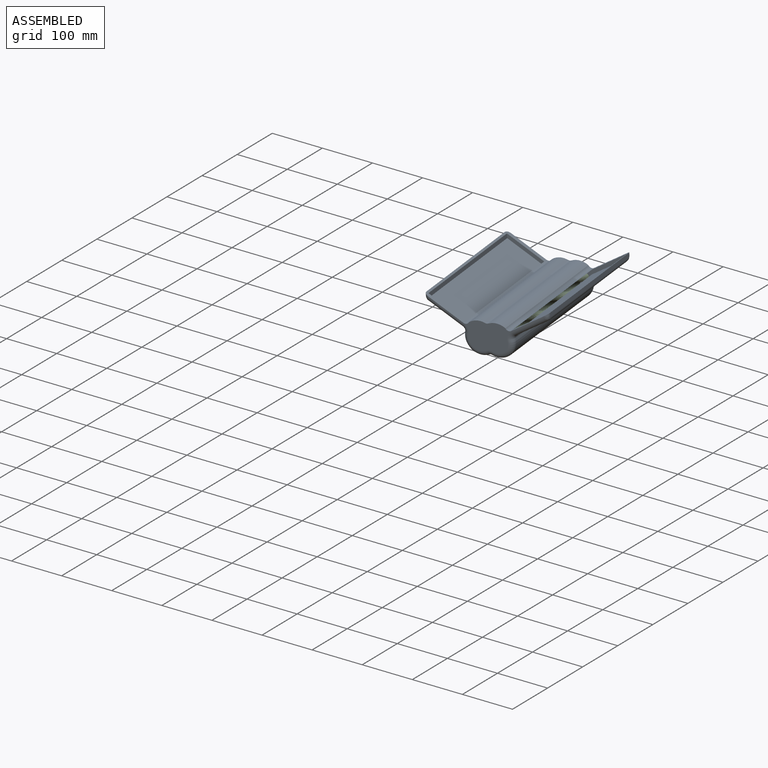
[diagram: assembled view]
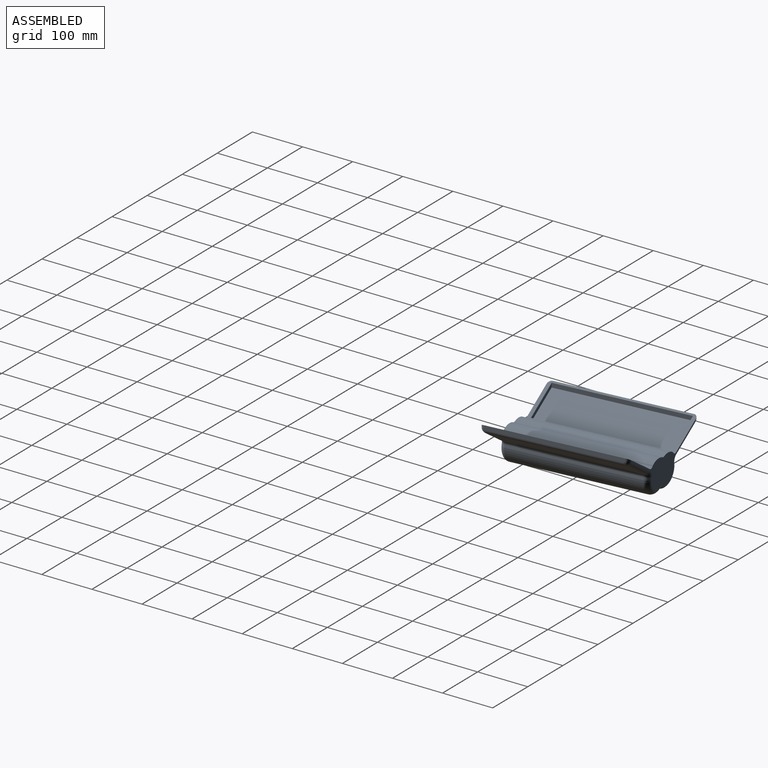
[diagram: assembled view, second angle]
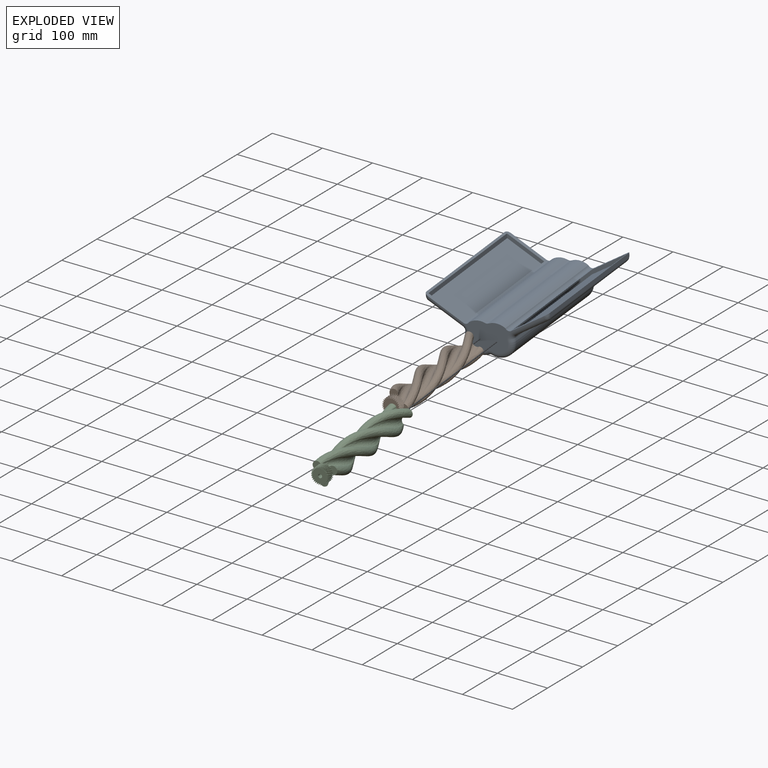
[diagram: exploded view]
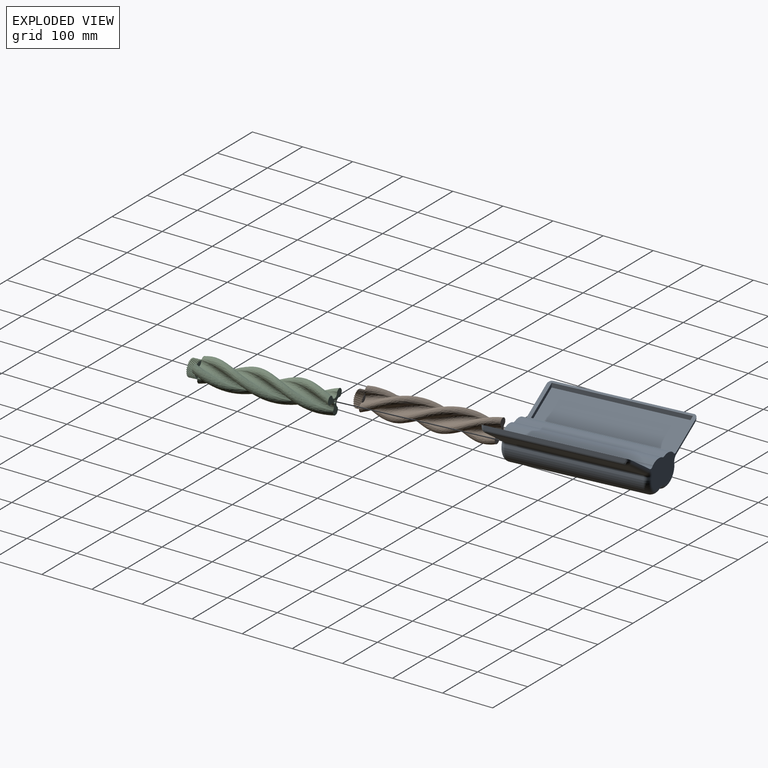
[diagram: exploded view, second angle]
ASSEMBLY  parts=3 mates=2
PART A: 62 faces, bbox 232x279.4x99.2 mm
  f0: plane 224.38x90.53mm, normal (0,-1,0), area 5153.3mm2, adj f2,f12,f20,f21,f22,f23,f24,f25
  f1: cylinder r=7.62mm len=279.4mm, axis (0,1,0), area 3344.3mm2, adj f2,f18,f19,f22,f37
  f2: plane 279.4x71.3mm, normal (-0.5,0,0.87), area 2388.1mm2, adj f0,f1,f3,f19,f20,f36,f37,f57
  f3: plane 264.16x8.3mm, normal (1,0,0), area 2189.5mm2, adj f2,f57,f58,f59,f60,f61
  f4: plane 259.08x62.65mm, normal (0.5,0,-0.87), area 18741.9mm2, adj f5,f44,f51,f59
  f5: cylinder r=6.35mm len=259.08mm, axis (0,1,0), area 2070.5mm2, adj f4,f6,f43,f50
  f6: cylinder r=31.75mm len=259.08mm, axis (0,1,0), area 18040.5mm2, adj f5,f7,f42,f49
  f7: cylinder r=6.35mm len=259.08mm, axis (0,1,0), area 1380mm2, adj f6,f8,f41,f48
  f8: cylinder r=31.75mm len=259.08mm, axis (0,1,0), area 18241.2mm2, adj f7,f9,f40,f47
  f9: cylinder r=6.35mm len=259.08mm, axis (0,1,0), area 2083mm2, adj f8,f10,f39,f46
  f10: plane 259.08x62.61mm, normal (-0.5,0,-0.87), area 18731mm2, adj f9,f38,f45,f54
  f11: plane 264.16x8.3mm, normal (-1,0,0), area 2189.5mm2, adj f12,f52,f53,f54,f55,f56
  f12: plane 279.4x71.3mm, normal (0.5,0,0.87), area 2388.1mm2, adj f0,f11,f13,f19,f21,f36,f37,f52
  f13: cylinder r=7.62mm len=279.4mm, axis (0,1,0), area 3344.3mm2, adj f12,f14,f19,f23,f37
  f14: plane 279.4x0.16mm, normal (-0.87,0,0.5), area 51.1mm2, adj f13,f15,f19,f37
  f15: cylinder r=32.77mm len=279.4mm, axis (0,1,0), area 8939.9mm2, adj f14,f16,f19,f37
  f16: cylinder r=7.62mm len=279.4mm, axis (0,1,0), area 1679.5mm2, adj f15,f17,f19,f37
  f17: cylinder r=32.77mm len=279.4mm, axis (0,1,0), area 9331.5mm2, adj f16,f18,f19,f37
  f18: plane 279.4x0.46mm, normal (0.87,0,0.5), area 147.3mm2, adj f1,f17,f19,f37
  f19: plane 216.76x82.01mm, normal (0,1,0), area 3772.2mm2, adj f1,f2,f12,f13,f14,f15,f16,f17
  f20: plane 264.16x8.3mm, normal (-1,0,0), area 2192.7mm2, adj f0,f2,f25,f36
  f21: plane 264.16x8.3mm, normal (1,0,0), area 2192.7mm2, adj f0,f12,f26,f36
  f22: plane 264.16x5.08mm, normal (0.5,0,-0.87), area 1548.7mm2, adj f0,f1,f30,f36
  f23: plane 264.16x5.08mm, normal (-0.5,0,-0.87), area 1548.7mm2, adj f0,f13,f33,f36
  f24: cylinder r=6.35mm len=264.16mm, axis (0,1,0), area 2278.8mm2, adj f0,f25,f29,f36
  f25: plane 264.16x67.46mm, normal (-0.5,0,0.87), area 20577.2mm2, adj f0,f20,f24,f36
  f26: plane 264.16x67.46mm, normal (0.5,0,0.87), area 20577.2mm2, adj f0,f21,f27,f36
  f27: cylinder r=6.35mm len=264.16mm, axis (0,1,0), area 2278.8mm2, adj f0,f26,f28,f36
  f28: cylinder r=27.43mm len=264.16mm, axis (0,1,0), area 18069.8mm2, adj f0,f27,f29,f36
  f29: cylinder r=27.43mm len=264.16mm, axis (0,1,0), area 18069.8mm2, adj f0,f24,f28,f36
  f30: cylinder r=6.35mm len=264.16mm, axis (0,1,0), area 1984.5mm2, adj f0,f22,f31,f36
  f31: cylinder r=27.43mm len=264.16mm, axis (0,1,0), area 9210mm2, adj f0,f30,f32,f36
  f32: cylinder r=27.43mm len=264.16mm, axis (0,1,0), area 9210mm2, adj f0,f31,f33,f36
  f33: cylinder r=6.35mm len=264.16mm, axis (0,1,0), area 1984.5mm2, adj f0,f23,f32,f36
  f34: cylinder r=3.81mm len=264.16mm, axis (0,1,0), area 6323.7mm2, adj f0,f36
  f35: cylinder r=3.81mm len=264.16mm, axis (0,1,0), area 6323.7mm2, adj f0,f36
  f36: plane 224.38x90.53mm, normal (0,1,0), area 5153.3mm2, adj f2,f12,f20,f21,f22,f23,f24,f25
  f37: plane 216.76x82.01mm, normal (0,-1,0), area 3772.2mm2, adj f1,f2,f12,f13,f14,f15,f16,f17
  f38: cylinder r=10.16mm len=68.96mm, axis (0.87,0,-0.5), area 1162.3mm2, adj f10,f37,f39,f55
  f39: torus R=16.51mm, axis (0,1,0), area 202.9mm2, adj f9,f37,f38,f40
  f40: torus R=21.59mm, axis (0,1,0), area 993mm2, adj f8,f37,f39,f41
  f41: torus R=16.51mm, axis (0,1,0), area 134.4mm2, adj f7,f37,f40,f42
  f42: torus R=21.59mm, axis (0,1,0), area 982.1mm2, adj f6,f37,f41,f43
  f43: torus R=16.51mm, axis (0,1,0), area 201.7mm2, adj f5,f37,f42,f44
  f44: cylinder r=10.16mm len=69mm, axis (0.87,0,0.5), area 1163mm2, adj f4,f37,f43,f60
  f45: cylinder r=10.16mm len=68.96mm, axis (-0.87,0,0.5), area 1162.3mm2, adj f10,f19,f46,f53
  f46: torus R=16.51mm, axis (0,1,0), area 202.9mm2, adj f9,f19,f45,f47
  f47: torus R=21.59mm, axis (0,1,0), area 993mm2, adj f8,f19,f46,f48
  f48: torus R=16.51mm, axis (0,1,0), area 134.4mm2, adj f7,f19,f47,f49
  f49: torus R=21.59mm, axis (0,1,0), area 982.1mm2, adj f6,f19,f48,f50
  f50: torus R=16.51mm, axis (0,1,0), area 201.7mm2, adj f5,f19,f49,f51
  f51: cylinder r=10.16mm len=69mm, axis (-0.87,0,-0.5), area 1163mm2, adj f4,f19,f50,f58
  f52: cylinder r=7.62mm len=7.62mm, axis (0,0,1), area 45.1mm2, adj f11,f12,f19,f53
  f53: bspline ~10.16x9.53mm, area 101.8mm2, adj f11,f45,f52,f54
  f54: cylinder r=7.62mm len=259.08mm, axis (0,1,0), area 2067.4mm2, adj f10,f11,f53,f55
  f55: bspline ~10.16x9.53mm, area 101.8mm2, adj f11,f38,f54,f56
  f56: cylinder r=7.62mm len=7.62mm, axis (0,0,-1), area 45.1mm2, adj f11,f12,f37,f55
  f57: cylinder r=7.62mm len=7.62mm, axis (0,0,-1), area 45.1mm2, adj f2,f3,f19,f58
  f58: bspline ~10.16x9.53mm, area 101.8mm2, adj f3,f51,f57,f59
  f59: cylinder r=7.62mm len=259.08mm, axis (0,1,0), area 2067.4mm2, adj f3,f4,f58,f60
  f60: bspline ~10.16x9.53mm, area 101.8mm2, adj f3,f44,f59,f61
  f61: cylinder r=7.62mm len=7.62mm, axis (0,0,1), area 45.1mm2, adj f2,f3,f37,f60
PART B: 135 faces, bbox 53.7x53.7x273.7 mm
  f0: cylinder r=14.35mm len=15.24mm, axis (0,0,-1), area 22.9mm2, adj f27,f40,f44,f45,f134
  f1: cylinder r=14.35mm len=15.24mm, axis (0,0,-1), area 22.9mm2, adj f40,f44,f131,f132
  f2: cylinder r=14.35mm len=15.24mm, axis (0,0,-1), area 22.9mm2, adj f40,f44,f128,f129
  f3: cylinder r=14.35mm len=15.24mm, axis (0,0,-1), area 22.9mm2, adj f40,f44,f125,f126
  f4: cylinder r=14.35mm len=15.24mm, axis (0,0,-1), area 22.9mm2, adj f40,f44,f120,f123
  f5: cylinder r=14.35mm len=15.24mm, axis (0,0,-1), area 22.9mm2, adj f40,f44,f117,f121
  f6: plane 17.2x13.21mm, normal (0,0,1), area 148.4mm2, adj f7,f8,f9,f10,f11,f33,f38,f105
  f7: cylinder r=14.35mm len=15.24mm, axis (0,0,-1), area 22.9mm2, adj f6,f44,f116,f118
  f8: cylinder r=14.35mm len=15.24mm, axis (0,0,-1), area 22.9mm2, adj f6,f44,f113,f114
  f9: cylinder r=14.35mm len=15.24mm, axis (0,0,-1), area 22.9mm2, adj f6,f44,f110,f111
  f10: cylinder r=14.35mm len=15.24mm, axis (0,0,-1), area 22.9mm2, adj f6,f44,f107,f108
  f11: cylinder r=14.35mm len=15.24mm, axis (0,0,-1), area 22.9mm2, adj f6,f42,f44,f104,f105
  f12: cylinder r=14.35mm len=15.24mm, axis (0,0,-1), area 22.9mm2, adj f42,f44,f101,f102
  f13: cylinder r=14.35mm len=15.24mm, axis (0,0,-1), area 22.9mm2, adj f42,f44,f98,f99
  f14: cylinder r=14.35mm len=15.24mm, axis (0,0,-1), area 22.9mm2, adj f42,f44,f95,f96
  f15: cylinder r=14.35mm len=15.24mm, axis (0,0,-1), area 22.9mm2, adj f42,f44,f92,f93
  f16: cylinder r=14.35mm len=15.24mm, axis (0,0,-1), area 22.9mm2, adj f42,f44,f87,f90
  f17: plane 17.01x15.8mm, normal (0,0,1), area 148.4mm2, adj f18,f19,f20,f21,f22,f34,f35,f75
  f18: cylinder r=14.35mm len=15.24mm, axis (0,0,-1), area 22.9mm2, adj f17,f44,f86,f88
  f19: cylinder r=14.35mm len=15.24mm, axis (0,0,-1), area 22.9mm2, adj f17,f44,f83,f84
  f20: cylinder r=14.35mm len=15.24mm, axis (0,0,-1), area 22.9mm2, adj f17,f44,f80,f81
  f21: cylinder r=14.35mm len=15.24mm, axis (0,0,-1), area 22.9mm2, adj f17,f44,f77,f78
  f22: cylinder r=14.35mm len=15.24mm, axis (0,0,-1), area 22.9mm2, adj f17,f41,f44,f74,f75
  f23: cylinder r=14.35mm len=15.24mm, axis (0,0,-1), area 22.9mm2, adj f41,f44,f71,f72
  f24: cylinder r=14.35mm len=15.24mm, axis (0,0,-1), area 22.9mm2, adj f41,f44,f68,f69
  f25: cylinder r=14.35mm len=15.24mm, axis (0,0,-1), area 22.9mm2, adj f41,f44,f65,f66
  f26: cylinder r=14.35mm len=15.24mm, axis (0,0,-1), area 22.9mm2, adj f41,f44,f62,f63
  f27: plane 17.14x15.56mm, normal (0,0,1), area 148.4mm2, adj f0,f29,f30,f31,f36,f37,f43,f45
  f28: cylinder r=14.35mm len=15.24mm, axis (0,0,-1), area 22.9mm2, adj f41,f44,f57,f60
  f29: cylinder r=14.35mm len=15.24mm, axis (0,0,-1), area 22.9mm2, adj f27,f44,f56,f58
  f30: cylinder r=14.35mm len=15.24mm, axis (0,0,-1), area 22.9mm2, adj f27,f44,f53,f54
  f31: cylinder r=14.35mm len=15.24mm, axis (0,0,-1), area 22.9mm2, adj f27,f44,f50,f51
  f32: plane 46.73x42.75mm, normal (0,0,-1), area 783.9mm2, adj f33,f34,f35,f36,f37,f38,f39
  f33: bspline ~254x31.99mm, area 6541.5mm2, adj f6,f32,f34,f38,f42
  f34: bspline ~254x53mm, area 8707.3mm2, adj f17,f32,f33,f35,f42
  f35: bspline ~254x31.99mm, area 6541.5mm2, adj f17,f32,f34,f36,f41
  f36: bspline ~254x53mm, area 8707.3mm2, adj f27,f32,f35,f37,f41
  f37: bspline ~254x31.99mm, area 6541.5mm2, adj f27,f32,f36,f38,f40
  f38: bspline ~254x52.98mm, area 8707.3mm2, adj f6,f32,f33,f37,f40
  f39: cylinder r=3.81mm len=269.24mm, axis (0,0,-1), area 6445.3mm2, adj f32,f44
  f40: plane 15.93x12.8mm, normal (0,0,-1), area 115.4mm2, adj f0,f1,f2,f3,f4,f5,f37,f38
  f41: plane 16.98x10.92mm, normal (0,0,-1), area 115.4mm2, adj f22,f23,f24,f25,f26,f28,f35,f36
  f42: plane 15.63x12.8mm, normal (0,0,-1), area 115.4mm2, adj f11,f12,f13,f14,f15,f16,f33,f34
  f43: cylinder r=14.35mm len=15.24mm, axis (0,0,-1), area 22.9mm2, adj f27,f44,f47,f48
  f44: plane 33.27x33.21mm, normal (0,0,1), area 684.8mm2, adj f0,f1,f2,f3,f4,f5,f7,f8
  f45: bspline ~19.05x10.14mm, area 39.5mm2, adj f0,f27,f44,f46
  f46: bspline ~19.05x11.06mm, area 14.3mm2, adj f27,f44,f45,f47
  f47: bspline ~19.05x10.22mm, area 39.5mm2, adj f27,f43,f44,f46
  f48: bspline ~19.05x10.27mm, area 39.5mm2, adj f27,f43,f44,f49
  f49: bspline ~19.05x11.14mm, area 14.3mm2, adj f27,f44,f48,f50
  f50: bspline ~19.05x10.23mm, area 39.5mm2, adj f27,f31,f44,f49
  f51: bspline ~19.05x10.16mm, area 39.5mm2, adj f27,f31,f44,f52
  f52: bspline ~19.05x10.74mm, area 14.3mm2, adj f27,f44,f51,f53
  f53: bspline ~15.24x7.71mm, area 39.5mm2, adj f27,f30,f44,f52
  f54: bspline ~15.24x8.12mm, area 39.5mm2, adj f27,f30,f44,f55
  f55: bspline ~19.05x9.86mm, area 14.3mm2, adj f27,f44,f54,f56
  f56: bspline ~15.24x7.33mm, area 39.5mm2, adj f27,f29,f44,f55
  f57: bspline ~15.24x7.33mm, area 39.5mm2, adj f28,f41,f44,f59
  f58: bspline ~19.05x9.18mm, area 39.5mm2, adj f27,f29,f44,f59
  f59: bspline ~19.05x8.56mm, area 14.3mm2, adj f27,f41,f44,f57,f58
  f60: bspline ~19.05x8.44mm, area 39.5mm2, adj f28,f41,f44,f61
  f61: bspline ~19.05x8.8mm, area 14.3mm2, adj f41,f44,f60,f62
  f62: bspline ~19.05x9.33mm, area 39.5mm2, adj f26,f41,f44,f61
  f63: bspline ~19.05x9.15mm, area 39.5mm2, adj f26,f41,f44,f64
  f64: bspline ~19.05x10.04mm, area 14.3mm2, adj f41,f44,f63,f65
  f65: bspline ~19.05x9.96mm, area 39.5mm2, adj f25,f41,f44,f64
  f66: bspline ~19.05x9.9mm, area 39.5mm2, adj f25,f41,f44,f67
  f67: bspline ~19.05x10.84mm, area 14.3mm2, adj f41,f44,f66,f68
  f68: bspline ~19.05x10.16mm, area 39.5mm2, adj f24,f41,f44,f67
  f69: bspline ~19.05x10.26mm, area 39.5mm2, adj f24,f41,f44,f70
  f70: bspline ~19.05x11.16mm, area 14.3mm2, adj f41,f44,f69,f71
  f71: bspline ~19.05x10.28mm, area 39.5mm2, adj f23,f41,f44,f70
  f72: bspline ~19.05x10.17mm, area 39.5mm2, adj f23,f41,f44,f73
  f73: bspline ~19.05x11mm, area 14.3mm2, adj f41,f44,f72,f74
  f74: bspline ~19.05x10.07mm, area 39.5mm2, adj f22,f41,f44,f73
  f75: bspline ~15.24x8.28mm, area 39.5mm2, adj f17,f22,f44,f76
  f76: bspline ~19.05x10.36mm, area 14.3mm2, adj f17,f44,f75,f77
  f77: bspline ~19.05x9.42mm, area 39.5mm2, adj f17,f21,f44,f76
  f78: bspline ~15.24x7.86mm, area 39.5mm2, adj f17,f21,f44,f79
  f79: bspline ~19.05x9.26mm, area 14.3mm2, adj f17,f44,f78,f80
  f80: bspline ~19.05x8.72mm, area 39.5mm2, adj f17,f20,f44,f79
  f81: bspline ~19.05x8.68mm, area 39.5mm2, adj f17,f20,f44,f82
  f82: bspline ~19.05x8.04mm, area 14.3mm2, adj f17,f44,f81,f83
  f83: bspline ~19.05x8.86mm, area 39.5mm2, adj f17,f19,f44,f82
  f84: bspline ~19.05x8.85mm, area 39.5mm2, adj f17,f19,f44,f85
  f85: bspline ~19.05x9.47mm, area 14.3mm2, adj f17,f44,f84,f86
  f86: bspline ~19.05x9.7mm, area 39.5mm2, adj f17,f18,f44,f85
  f87: bspline ~19.05x10.12mm, area 39.5mm2, adj f16,f42,f44,f89
  f88: bspline ~15.24x7.87mm, area 39.5mm2, adj f17,f18,f44,f89
  f89: bspline ~19.05x10.5mm, area 14.3mm2, adj f17,f42,f44,f87,f88
  f90: bspline ~19.05x10.14mm, area 39.5mm2, adj f16,f42,f44,f91
  f91: bspline ~19.05x11.06mm, area 14.3mm2, adj f42,f44,f90,f92
  f92: bspline ~19.05x10.22mm, area 39.5mm2, adj f15,f42,f44,f91
  f93: bspline ~19.05x10.27mm, area 39.5mm2, adj f15,f42,f44,f94
  f94: bspline ~19.05x11.14mm, area 14.3mm2, adj f42,f44,f93,f95
  f95: bspline ~19.05x10.23mm, area 39.5mm2, adj f14,f42,f44,f94
  f96: bspline ~19.05x10.16mm, area 39.5mm2, adj f14,f42,f44,f97
  f97: bspline ~19.05x10.74mm, area 14.3mm2, adj f42,f44,f96,f98
  f98: bspline ~15.24x7.71mm, area 39.5mm2, adj f13,f42,f44,f97
  f99: bspline ~15.24x8.12mm, area 39.5mm2, adj f13,f42,f44,f100
  f100: bspline ~19.05x9.86mm, area 14.3mm2, adj f42,f44,f99,f101
  f101: bspline ~15.24x7.33mm, area 39.5mm2, adj f12,f42,f44,f100
  f102: bspline ~19.05x9.18mm, area 39.5mm2, adj f12,f42,f44,f103
  f103: bspline ~19.05x8.56mm, area 14.3mm2, adj f42,f44,f102,f104
  f104: bspline ~15.24x7.33mm, area 39.5mm2, adj f11,f42,f44,f103
  f105: bspline ~19.05x8.44mm, area 39.5mm2, adj f6,f11,f44,f106
  f106: bspline ~19.05x8.8mm, area 14.3mm2, adj f6,f44,f105,f107
  f107: bspline ~19.05x9.33mm, area 39.5mm2, adj f6,f10,f44,f106
  f108: bspline ~19.05x9.15mm, area 39.5mm2, adj f6,f10,f44,f109
  f109: bspline ~19.05x10.04mm, area 14.3mm2, adj f6,f44,f108,f110
  f110: bspline ~19.05x9.96mm, area 39.5mm2, adj f6,f9,f44,f109
  f111: bspline ~19.05x9.9mm, area 39.5mm2, adj f6,f9,f44,f112
  f112: bspline ~19.05x10.84mm, area 14.3mm2, adj f6,f44,f111,f113
  f113: bspline ~19.05x10.16mm, area 39.5mm2, adj f6,f8,f44,f112
  f114: bspline ~19.05x10.26mm, area 39.5mm2, adj f6,f8,f44,f115
  f115: bspline ~19.05x11.16mm, area 14.3mm2, adj f6,f44,f114,f116
  f116: bspline ~19.05x10.28mm, area 39.5mm2, adj f6,f7,f44,f115
  f117: bspline ~19.05x10.07mm, area 39.5mm2, adj f5,f40,f44,f119
  f118: bspline ~19.05x10.17mm, area 39.5mm2, adj f6,f7,f44,f119
  f119: bspline ~19.05x11mm, area 14.3mm2, adj f6,f40,f44,f117,f118
  f120: bspline ~19.05x9.42mm, area 39.5mm2, adj f4,f40,f44,f122
  f121: bspline ~15.24x8.28mm, area 39.5mm2, adj f5,f40,f44,f122
  f122: bspline ~19.05x10.36mm, area 14.3mm2, adj f40,f44,f120,f121
  f123: bspline ~15.24x7.86mm, area 39.5mm2, adj f4,f40,f44,f124
  f124: bspline ~19.05x9.26mm, area 14.3mm2, adj f40,f44,f123,f125
  f125: bspline ~19.05x8.72mm, area 39.5mm2, adj f3,f40,f44,f124
  f126: bspline ~19.05x8.68mm, area 39.5mm2, adj f3,f40,f44,f127
  f127: bspline ~19.05x8.04mm, area 14.3mm2, adj f40,f44,f126,f128
  f128: bspline ~19.05x8.86mm, area 39.5mm2, adj f2,f40,f44,f127
  f129: bspline ~19.05x8.85mm, area 39.5mm2, adj f2,f40,f44,f130
  f130: bspline ~19.05x9.47mm, area 14.3mm2, adj f40,f44,f129,f131
  f131: bspline ~19.05x9.7mm, area 39.5mm2, adj f1,f40,f44,f130
  f132: bspline ~15.24x7.87mm, area 39.5mm2, adj f1,f40,f44,f133
  f133: bspline ~19.05x10.5mm, area 14.3mm2, adj f40,f44,f132,f134
  f134: bspline ~19.05x10.12mm, area 39.5mm2, adj f0,f40,f44,f133
PART C: 135 faces, bbox 53.7x53.7x273.7 mm
  f0: cylinder r=14.35mm len=15.24mm, axis (0,0,-1), area 22.9mm2, adj f19,f43,f44,f84,f134
  f1: cylinder r=14.35mm len=15.24mm, axis (0,0,-1), area 22.9mm2, adj f43,f44,f131,f132
  f2: cylinder r=14.35mm len=15.24mm, axis (0,0,-1), area 22.9mm2, adj f43,f44,f128,f129
  f3: cylinder r=14.35mm len=15.24mm, axis (0,0,-1), area 22.9mm2, adj f43,f44,f125,f126
  f4: cylinder r=14.35mm len=15.24mm, axis (0,0,-1), area 22.9mm2, adj f43,f44,f122,f123
  f5: cylinder r=14.35mm len=15.24mm, axis (0,0,-1), area 22.9mm2, adj f43,f44,f119,f120
  f6: plane 17.2x13.21mm, normal (0,0,1), area 148.4mm2, adj f7,f8,f9,f10,f11,f38,f39,f105
  f7: cylinder r=14.35mm len=15.24mm, axis (0,0,-1), area 22.9mm2, adj f6,f44,f116,f117
  f8: cylinder r=14.35mm len=15.24mm, axis (0,0,-1), area 22.9mm2, adj f6,f44,f113,f114
  f9: cylinder r=14.35mm len=15.24mm, axis (0,0,-1), area 22.9mm2, adj f6,f44,f110,f111
  f10: cylinder r=14.35mm len=15.24mm, axis (0,0,-1), area 22.9mm2, adj f6,f44,f107,f108
  f11: cylinder r=14.35mm len=15.24mm, axis (0,0,-1), area 22.9mm2, adj f6,f41,f44,f104,f105
  f12: cylinder r=14.35mm len=15.24mm, axis (0,0,-1), area 22.9mm2, adj f41,f44,f101,f102
  f13: cylinder r=14.35mm len=15.24mm, axis (0,0,-1), area 22.9mm2, adj f41,f44,f98,f99
  f14: cylinder r=14.35mm len=15.24mm, axis (0,0,-1), area 22.9mm2, adj f41,f44,f95,f96
  f15: cylinder r=14.35mm len=15.24mm, axis (0,0,-1), area 22.9mm2, adj f41,f44,f92,f93
  f16: cylinder r=14.35mm len=15.24mm, axis (0,0,-1), area 22.9mm2, adj f41,f44,f89,f90
  f17: plane 17.01x15.8mm, normal (0,0,1), area 148.4mm2, adj f20,f22,f24,f26,f27,f36,f37,f63
  f18: cylinder r=14.35mm len=15.24mm, axis (0,0,-1), area 22.9mm2, adj f19,f44,f78,f86
  f19: plane 17.14x15.56mm, normal (0,0,1), area 148.4mm2, adj f0,f18,f21,f23,f25,f34,f35,f45
  f20: cylinder r=14.35mm len=15.24mm, axis (0,0,-1), area 22.9mm2, adj f17,f44,f83,f87
  f21: cylinder r=14.35mm len=15.24mm, axis (0,0,-1), area 22.9mm2, adj f19,f44,f72,f80
  f22: cylinder r=14.35mm len=15.24mm, axis (0,0,-1), area 22.9mm2, adj f17,f44,f77,f81
  f23: cylinder r=14.35mm len=15.24mm, axis (0,0,-1), area 22.9mm2, adj f19,f44,f66,f74
  f24: cylinder r=14.35mm len=15.24mm, axis (0,0,-1), area 22.9mm2, adj f17,f44,f71,f75
  f25: cylinder r=14.35mm len=15.24mm, axis (0,0,-1), area 22.9mm2, adj f19,f44,f45,f68
  f26: cylinder r=14.35mm len=15.24mm, axis (0,0,-1), area 22.9mm2, adj f17,f44,f65,f69
  f27: cylinder r=14.35mm len=15.24mm, axis (0,0,-1), area 22.9mm2, adj f17,f42,f44,f62,f63
  f28: cylinder r=14.35mm len=15.24mm, axis (0,0,-1), area 22.9mm2, adj f42,f44,f59,f60
  f29: cylinder r=14.35mm len=15.24mm, axis (0,0,-1), area 22.9mm2, adj f42,f44,f56,f57
  f30: cylinder r=14.35mm len=15.24mm, axis (0,0,-1), area 22.9mm2, adj f42,f44,f53,f54
  f31: cylinder r=14.35mm len=15.24mm, axis (0,0,-1), area 22.9mm2, adj f42,f44,f50,f51
  f32: cylinder r=14.35mm len=15.24mm, axis (0,0,-1), area 22.9mm2, adj f42,f44,f47,f48
  f33: plane 46.73x42.75mm, normal (0,0,-1), area 783.9mm2, adj f34,f35,f36,f37,f38,f39,f40
  f34: bspline ~254x31.99mm, area 6541.5mm2, adj f19,f33,f35,f39,f43
  f35: bspline ~254x53mm, area 8707.3mm2, adj f19,f33,f34,f36,f42
  f36: bspline ~254x31.99mm, area 6541.5mm2, adj f17,f33,f35,f37,f42
  f37: bspline ~254x53mm, area 8707.3mm2, adj f17,f33,f36,f38,f41
  f38: bspline ~254x31.99mm, area 6541.5mm2, adj f6,f33,f37,f39,f41
  f39: bspline ~254x52.98mm, area 8707.3mm2, adj f6,f33,f34,f38,f43
  f40: cylinder r=3.81mm len=269.24mm, axis (0,0,-1), area 6445.3mm2, adj f33,f44
  f41: plane 15.63x12.8mm, normal (0,0,-1), area 115.4mm2, adj f11,f12,f13,f14,f15,f16,f37,f38
  f42: plane 16.98x10.92mm, normal (0,0,-1), area 115.4mm2, adj f27,f28,f29,f30,f31,f32,f35,f36
  f43: plane 15.93x12.8mm, normal (0,0,-1), area 115.4mm2, adj f0,f1,f2,f3,f4,f5,f34,f39
  f44: plane 33.27x33.27mm, normal (0,0,1), area 684.9mm2, adj f0,f1,f2,f3,f4,f5,f7,f8
  f45: bspline ~19.05x9.9mm, area 39.5mm2, adj f19,f25,f44,f46
  f46: bspline ~15.24x8.75mm, area 14.3mm2, adj f19,f42,f44,f45,f47
  f47: bspline ~19.05x10.16mm, area 39.5mm2, adj f32,f42,f44,f46
  f48: bspline ~19.05x10.26mm, area 39.5mm2, adj f32,f42,f44,f49
  f49: bspline ~15.24x9.13mm, area 14.3mm2, adj f42,f44,f48,f50
  f50: bspline ~19.05x10.28mm, area 39.5mm2, adj f31,f42,f44,f49
  f51: bspline ~19.05x10.17mm, area 39.5mm2, adj f31,f42,f44,f52
  f52: bspline ~15.24x9.12mm, area 14.3mm2, adj f42,f44,f51,f53
  f53: bspline ~15.24x8.19mm, area 39.5mm2, adj f30,f42,f44,f52
  f54: bspline ~19.05x10.08mm, area 39.5mm2, adj f30,f42,f44,f55
  f55: bspline ~15.24x8.71mm, area 14.3mm2, adj f42,f44,f54,f56
  f56: bspline ~19.05x9.42mm, area 39.5mm2, adj f29,f42,f44,f55
  f57: bspline ~19.05x9.59mm, area 39.5mm2, adj f29,f42,f44,f58
  f58: bspline ~19.05x9.26mm, area 14.3mm2, adj f42,f44,f57,f59
  f59: bspline ~19.05x8.72mm, area 39.5mm2, adj f28,f42,f44,f58
  f60: bspline ~15.24x7.59mm, area 39.5mm2, adj f28,f42,f44,f61
  f61: bspline ~19.05x8.04mm, area 14.3mm2, adj f42,f44,f60,f62
  f62: bspline ~15.24x7.24mm, area 39.5mm2, adj f27,f42,f44,f61
  f63: bspline ~19.05x8.85mm, area 39.5mm2, adj f17,f27,f44,f64
  f64: bspline ~15.24x7.46mm, area 14.3mm2, adj f17,f44,f63,f65
  f65: bspline ~15.24x7.95mm, area 39.5mm2, adj f17,f26,f44,f64
  f66: bspline ~19.05x9.15mm, area 39.5mm2, adj f19,f23,f44,f67
  f67: bspline ~19.05x10.04mm, area 14.3mm2, adj f19,f44,f66,f68
  f68: bspline ~19.05x9.96mm, area 39.5mm2, adj f19,f25,f44,f67
  f69: bspline ~19.05x9.56mm, area 39.5mm2, adj f17,f26,f44,f70
  f70: bspline ~19.05x10.5mm, area 14.3mm2, adj f17,f44,f69,f71
  f71: bspline ~19.05x10.12mm, area 39.5mm2, adj f17,f24,f44,f70
  f72: bspline ~19.05x8.44mm, area 39.5mm2, adj f19,f21,f44,f73
  f73: bspline ~19.05x8.8mm, area 14.3mm2, adj f19,f44,f72,f74
  f74: bspline ~19.05x9.33mm, area 39.5mm2, adj f19,f23,f44,f73
  f75: bspline ~19.05x10.14mm, area 39.5mm2, adj f17,f24,f44,f76
  f76: bspline ~19.05x11.06mm, area 14.3mm2, adj f17,f44,f75,f77
  f77: bspline ~15.24x8.32mm, area 39.5mm2, adj f17,f22,f44,f76
  f78: bspline ~19.05x9.18mm, area 39.5mm2, adj f18,f19,f44,f79
  f79: bspline ~19.05x8.56mm, area 14.3mm2, adj f19,f44,f78,f80
  f80: bspline ~15.24x7.12mm, area 39.5mm2, adj f19,f21,f44,f79
  f81: bspline ~19.05x10.27mm, area 39.5mm2, adj f17,f22,f44,f82
  f82: bspline ~15.24x9.18mm, area 14.3mm2, adj f17,f44,f81,f83
  f83: bspline ~15.24x8.27mm, area 39.5mm2, adj f17,f20,f44,f82
  f84: bspline ~15.24x8.31mm, area 39.5mm2, adj f0,f19,f44,f85
  f85: bspline ~15.24x8.36mm, area 14.3mm2, adj f19,f44,f84,f86
  f86: bspline ~15.24x7.56mm, area 39.5mm2, adj f18,f19,f44,f85
  f87: bspline ~19.05x10.16mm, area 39.5mm2, adj f17,f20,f44,f88
  f88: bspline ~19.05x10.74mm, area 14.3mm2, adj f17,f41,f44,f87,f89
  f89: bspline ~15.24x8.03mm, area 39.5mm2, adj f16,f41,f44,f88
  f90: bspline ~15.24x8.31mm, area 39.5mm2, adj f16,f41,f44,f91
  f91: bspline ~19.05x9.86mm, area 14.3mm2, adj f41,f44,f90,f92
  f92: bspline ~15.24x7.56mm, area 39.5mm2, adj f15,f41,f44,f91
  f93: bspline ~19.05x9.18mm, area 39.5mm2, adj f15,f41,f44,f94
  f94: bspline ~19.05x8.56mm, area 14.3mm2, adj f41,f44,f93,f95
  f95: bspline ~15.24x7.12mm, area 39.5mm2, adj f14,f41,f44,f94
  f96: bspline ~19.05x8.44mm, area 39.5mm2, adj f14,f41,f44,f97
  f97: bspline ~19.05x8.8mm, area 14.3mm2, adj f41,f44,f96,f98
  f98: bspline ~19.05x9.33mm, area 39.5mm2, adj f13,f41,f44,f97
  f99: bspline ~15.24x7.41mm, area 39.5mm2, adj f13,f41,f44,f100
  f100: bspline ~19.05x10.04mm, area 14.3mm2, adj f41,f44,f99,f101
  f101: bspline ~15.24x8.18mm, area 39.5mm2, adj f12,f41,f44,f100
  f102: bspline ~19.05x9.9mm, area 39.5mm2, adj f12,f41,f44,f103
  f103: bspline ~15.24x8.75mm, area 14.3mm2, adj f41,f44,f102,f104
  f104: bspline ~19.05x10.16mm, area 39.5mm2, adj f11,f41,f44,f103
  f105: bspline ~19.05x10.26mm, area 39.5mm2, adj f6,f11,f44,f106
  f106: bspline ~15.24x9.13mm, area 14.3mm2, adj f6,f44,f105,f107
  f107: bspline ~19.05x10.28mm, area 39.5mm2, adj f6,f10,f44,f106
  f108: bspline ~19.05x10.17mm, area 39.5mm2, adj f6,f10,f44,f109
  f109: bspline ~15.24x9.12mm, area 14.3mm2, adj f6,f44,f108,f110
  f110: bspline ~19.05x10.07mm, area 39.5mm2, adj f6,f9,f44,f109
  f111: bspline ~19.05x10.08mm, area 39.5mm2, adj f6,f9,f44,f112
  f112: bspline ~19.05x10.36mm, area 14.3mm2, adj f6,f44,f111,f113
  f113: bspline ~19.05x9.42mm, area 39.5mm2, adj f6,f8,f44,f112
  f114: bspline ~19.05x9.59mm, area 39.5mm2, adj f6,f8,f44,f115
  f115: bspline ~15.24x7.92mm, area 14.3mm2, adj f6,f44,f114,f116
  f116: bspline ~19.05x8.72mm, area 39.5mm2, adj f6,f7,f44,f115
  f117: bspline ~19.05x8.68mm, area 39.5mm2, adj f6,f7,f44,f118
  f118: bspline ~19.05x8.04mm, area 14.3mm2, adj f6,f43,f44,f117,f119
  f119: bspline ~19.05x8.86mm, area 39.5mm2, adj f5,f43,f44,f118
  f120: bspline ~15.24x7.16mm, area 39.5mm2, adj f5,f43,f44,f121
  f121: bspline ~15.24x7.46mm, area 14.3mm2, adj f43,f44,f120,f122
  f122: bspline ~15.24x7.95mm, area 39.5mm2, adj f4,f43,f44,f121
  f123: bspline ~19.05x9.56mm, area 39.5mm2, adj f4,f43,f44,f124
  f124: bspline ~15.24x8.41mm, area 14.3mm2, adj f43,f44,f123,f125
  f125: bspline ~19.05x10.12mm, area 39.5mm2, adj f3,f43,f44,f124
  f126: bspline ~19.05x10.14mm, area 39.5mm2, adj f3,f43,f44,f127
  f127: bspline ~19.05x11.06mm, area 14.3mm2, adj f43,f44,f126,f128
  f128: bspline ~19.05x10.22mm, area 39.5mm2, adj f2,f43,f44,f127
  f129: bspline ~19.05x10.27mm, area 39.5mm2, adj f2,f43,f44,f130
  f130: bspline ~19.05x11.14mm, area 14.3mm2, adj f43,f44,f129,f131
  f131: bspline ~15.24x8.27mm, area 39.5mm2, adj f1,f43,f44,f130
  f132: bspline ~19.05x10.16mm, area 39.5mm2, adj f1,f43,f44,f133
  f133: bspline ~19.05x10.74mm, area 14.3mm2, adj f43,f44,f132,f134
  f134: bspline ~19.05x9.8mm, area 39.5mm2, adj f0,f43,f44,f133
PLACE A rot(axis=(0.03,-0.51,0.86),6.9deg) t=(-7.57,3.49,-21.44)mm fixed
PLACE B rot(axis=(0.02,0.71,-0.7),168.9deg) t=(-48,252.62,-42.69)mm
PLACE C rot(axis=(0.43,-0.62,0.66),139.7deg) t=(19.55,259.63,-116.25)mm
MATE revolute B.f39 <-> A.f15  axis (0.1,-0.99,0) through (-20.18,-15.18,-42.69)mm
MATE revolute C.f40 <-> A.f29  axis (0.1,-0.99,0) through (11.09,-11.93,-40.76)mm
